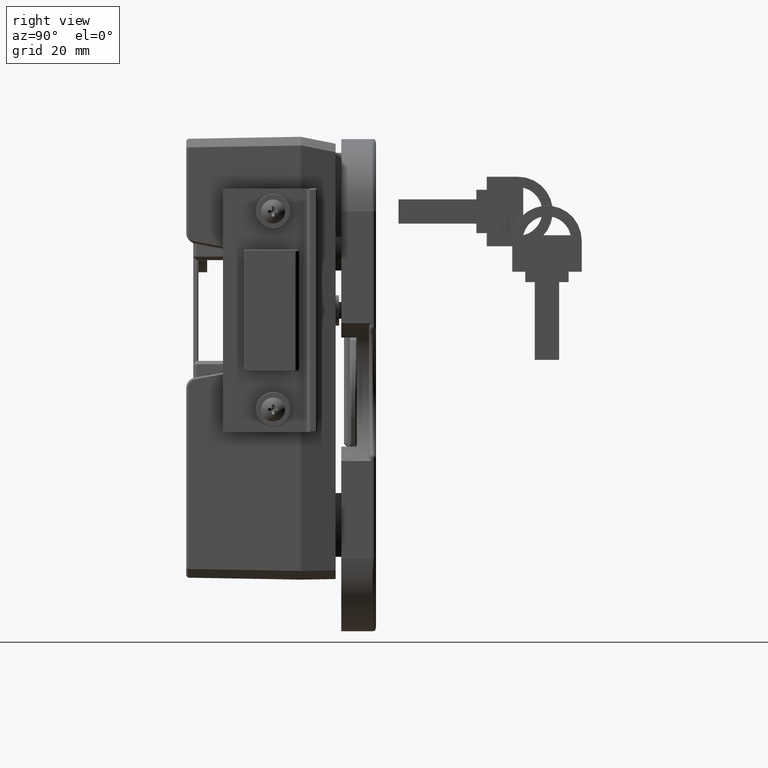
[diagram: clean part render]
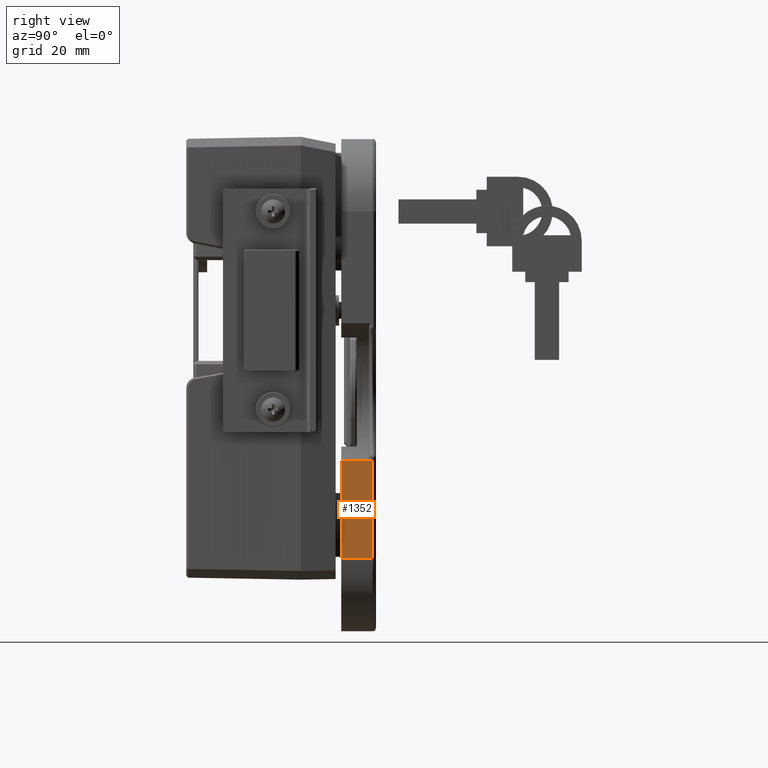
[diagram: same view with one face highlighted and labeled with its STEP entity id]
A machine part, right view. The second image highlights one B-rep face of the part: STEP entity #1352.
In plain terms, the highlighted planar face has unit normal (1, 0, 0).
Its self-contained STEP definition (entity closure, byte-faithful):
#1352=ADVANCED_FACE('',(#11189),#11188,.T.);
#11188=PLANE('',#23814);
#11189=FACE_OUTER_BOUND('',#23815,.T.);
#23811=CARTESIAN_POINT('',(-2.10000000398E+01,-9.89999999994E+00,-1.02815686513E+02));
#23812=DIRECTION('',(-1.00000000000E+00,0.00000000000E+00,0.00000000000E+00));
#23813=DIRECTION('',(0.00000000000E+00,0.00000000000E+00,1.00000000000E+00));
#23814=AXIS2_PLACEMENT_3D('',#23811,#23812,#23813);
#23815=EDGE_LOOP('',(#33270,#33271,#33272,#33273));
#33270=ORIENTED_EDGE('',*,*,#39211,.T.);
#33271=ORIENTED_EDGE('',*,*,#39202,.T.);
#33272=ORIENTED_EDGE('',*,*,#39315,.F.);
#33273=ORIENTED_EDGE('',*,*,#39316,.F.);
#39202=EDGE_CURVE('',#56861,#56854,#56862,.T.);
#39211=EDGE_CURVE('',#56902,#56861,#56923,.T.);
#39315=EDGE_CURVE('',#57625,#56854,#57626,.T.);
#39316=EDGE_CURVE('',#56902,#57625,#57632,.T.);
#56854=VERTEX_POINT('',#78481);
#56861=VERTEX_POINT('',#78486);
#56862=LINE('',#78487,#78488);
#56902=VERTEX_POINT('',#78525);
#56923=LINE('',#78539,#78540);
#57625=VERTEX_POINT('',#78966);
#57626=LINE('',#78967,#78968);
#57632=LINE('',#78970,#78971);
#78481=CARTESIAN_POINT('',(-2.10000000409E+01,0.00000000000E+00,-7.18431348775E+01));
#78486=CARTESIAN_POINT('',(-2.10000000398E+01,-8.99999999994E+00,-7.18431348775E+01));
#78487=CARTESIAN_POINT('',(-2.10000000409E+01,-8.99999999994E+00,-7.18431348775E+01));
#78488=VECTOR('',#78489,8.99999999994E+00);
#78489=DIRECTION('',(0.00000000000E+00,1.00000000000E+00,0.00000000000E+00));
#78525=CARTESIAN_POINT('',(-2.10000000398E+01,-8.99999999994E+00,-1.00000000000E+02));
#78539=CARTESIAN_POINT('',(-2.10000000398E+01,-8.99999999994E+00,-1.00000000000E+02));
#78540=VECTOR('',#78541,2.81568651228E+01);
#78541=DIRECTION('',(0.00000000000E+00,0.00000000000E+00,1.00000000000E+00));
#78966=CARTESIAN_POINT('',(-2.10000000398E+01,0.00000000000E+00,-1.00000000000E+02));
#78967=CARTESIAN_POINT('',(-2.10000000398E+01,0.00000000000E+00,-1.00000000000E+02));
#78968=VECTOR('',#78969,2.81568651228E+01);
#78969=DIRECTION('',(0.00000000000E+00,0.00000000000E+00,1.00000000000E+00));
#78970=CARTESIAN_POINT('',(-2.10000000398E+01,-8.99999999994E+00,-1.00000000000E+02));
#78971=VECTOR('',#78972,8.99999999994E+00);
#78972=DIRECTION('',(0.00000000000E+00,1.00000000000E+00,0.00000000000E+00));